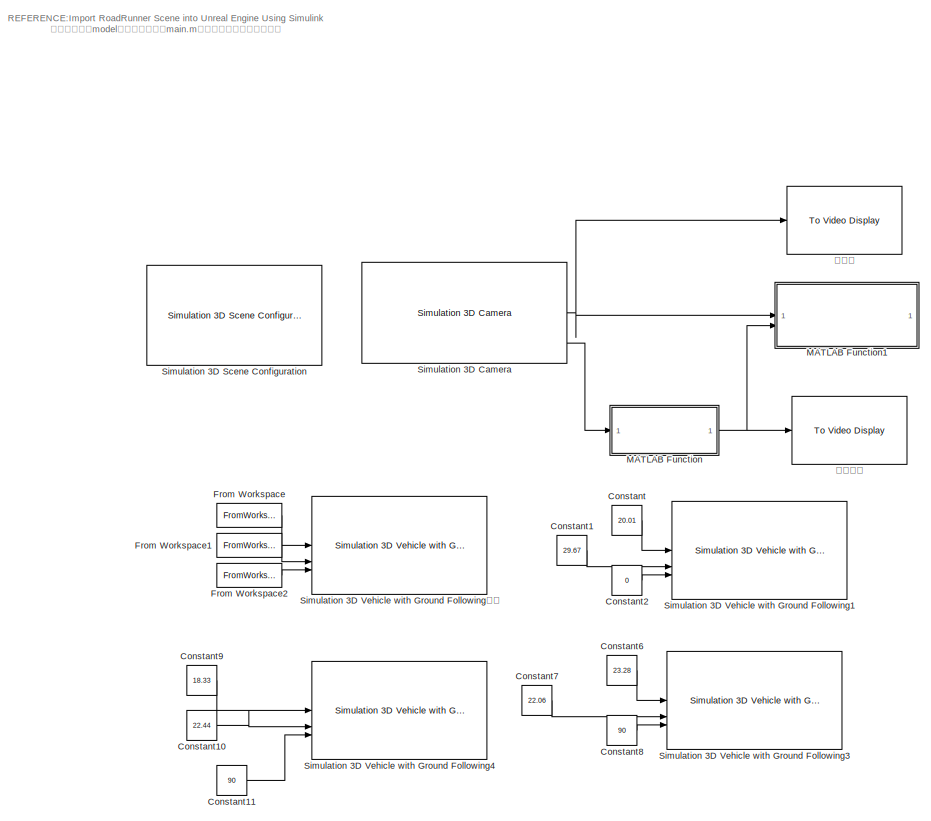
[diagram: root canvas - part 1/2, full width, top band]
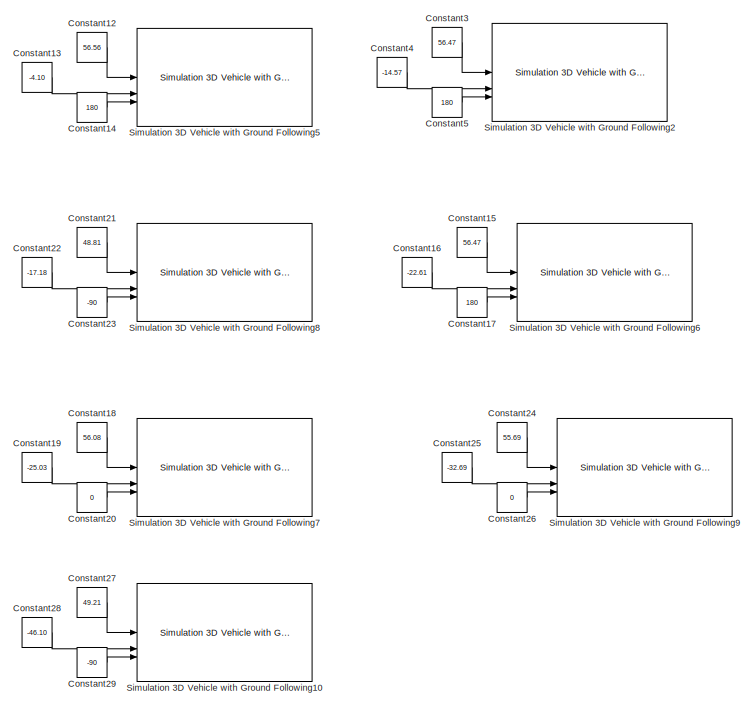
[diagram: root canvas - part 2/2, full width, bottom band]
MODEL slx_b4648ece061b
KIND model
CONFIG AbsTol = auto
CONFIG EnableMultiTasking = off
CONFIG FixedStep = auto
CONFIG MaxStep = auto
CONFIG MinStep = auto
CONFIG RelTol = 1e-3
CONFIG SampleTimeConstraint = Unconstrained
CONFIG SolverName = VariableStepAuto
CONFIG StartTime = 0.0
CONFIG StopTime = 11.5667
BLOCK [Constant] Constant
  Value = 20.01
BLOCK [Constant] Constant1
  Value = 29.67
BLOCK [Constant] Constant10
  Value = 22.44
BLOCK [Constant] Constant11
  Value = 90
BLOCK [Constant] Constant12
  Value = 56.56
BLOCK [Constant] Constant13
  Value = -4.10
BLOCK [Constant] Constant14
  Value = 180
BLOCK [Constant] Constant15
  Value = 56.47
BLOCK [Constant] Constant16
  Value = -22.61
BLOCK [Constant] Constant17
  Value = 180
BLOCK [Constant] Constant18
  Value = 56.08
BLOCK [Constant] Constant19
  Value = -25.03
BLOCK [Constant] Constant2
  Value = 0
BLOCK [Constant] Constant20
  Value = 0
BLOCK [Constant] Constant21
  Value = 48.81
BLOCK [Constant] Constant22
  Value = -17.18
BLOCK [Constant] Constant23
  Value = -90
BLOCK [Constant] Constant24
  Value = 55.69
BLOCK [Constant] Constant25
  Value = -32.69
BLOCK [Constant] Constant26
  Value = 0
BLOCK [Constant] Constant27
  Value = 49.21
BLOCK [Constant] Constant28
  Value = -46.10
BLOCK [Constant] Constant29
  Value = -90
BLOCK [Constant] Constant3
  Value = 56.47
BLOCK [Constant] Constant4
  Value = -14.57
BLOCK [Constant] Constant5
  Value = 180
BLOCK [Constant] Constant6
  Value = 23.28
BLOCK [Constant] Constant7
  Value = 22.06
BLOCK [Constant] Constant8
  Value = 90
BLOCK [Constant] Constant9
  Value = 18.33
BLOCK [FromWorkspace] From Workspace
  VariableName = posX
BLOCK [FromWorkspace] From Workspace1
  VariableName = posY
BLOCK [FromWorkspace] From Workspace2
  VariableName = posYaw
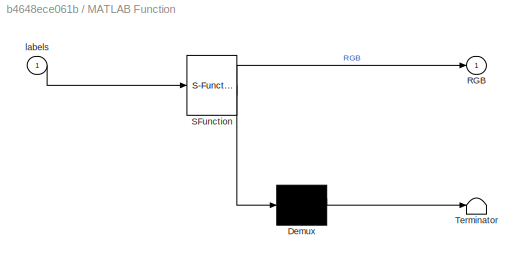
BLOCK [SubSystem] MATLAB Function
  ErrorFcn = Stateflow.Translate.translate
  PermitHierarchicalResolution = ExplicitOnly
  SFBlockType = MATLAB Function
  TreatAsAtomicUnit = on
BLOCK [Demux] MATLAB Function/ Demux 
  Outputs = 1
BLOCK [S-Function] MATLAB Function/ SFunction 
  EnableBusSupport = on
  FunctionName = sf_sfun
  PortCounts = [1 2]
  SFcnIsStateOwnerBlock = off
  SFunctionDeploymentMode = off
  Tag = Stateflow S-Function 2
BLOCK [Terminator] MATLAB Function/ Terminator 
BLOCK [Outport] MATLAB Function/RGB
BLOCK [Inport] MATLAB Function/labels
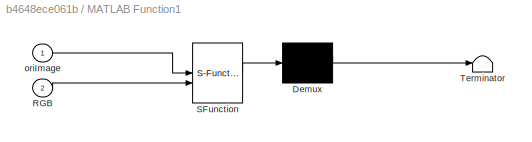
BLOCK [SubSystem] MATLAB Function1
  ErrorFcn = Stateflow.Translate.translate
  PermitHierarchicalResolution = ExplicitOnly
  SFBlockType = MATLAB Function
  TreatAsAtomicUnit = on
BLOCK [Demux] MATLAB Function1/ Demux 
  Outputs = 1
BLOCK [S-Function] MATLAB Function1/ SFunction 
  EnableBusSupport = on
  FunctionName = sf_sfun
  PortCounts = [2 1]
  SFcnIsStateOwnerBlock = off
  SFunctionDeploymentMode = off
  Tag = Stateflow S-Function 1
BLOCK [Terminator] MATLAB Function1/ Terminator 
BLOCK [Inport] MATLAB Function1/RGB
  Port = 2
BLOCK [Inport] MATLAB Function1/oriImage
BLOCK [Reference] Simulation 3D Camera  REF=sim3dcameralib/Simulation 3D Camera
  LibrarySourceBlock = drivingsim3d/Simulation 3D Camera
  Priority = 1
  SourceBlock = sim3dcameralib/Simulation 3D Camera
  SourceType = Simulation 3D Camera
BLOCK [Reference] Simulation 3D Scene Configuration  REF=sim3dlib/Simulation 3D Scene Configuration
  LibrarySourceBlock = drivingsim3d/Simulation 3D Scene Configuration
  Priority = 0
  SourceBlock = sim3dlib/Simulation 3D Scene Configuration
  SourceType = Simulation 3D Scene Configuration
BLOCK [Reference] Simulation 3D Vehicle with Ground Following1  REF=sim3dautolib/Simulation 3D Vehicle with Ground Following
  LibrarySourceBlock = drivingsim3d/Simulation 3D Vehicle with Ground Following
  Priority = -1
  SourceBlock = sim3dautolib/Simulation 3D Vehicle with Ground Following
  SourceType = Simulation 3D Vehicle with Ground Following
BLOCK [Reference] Simulation 3D Vehicle with Ground Following10  REF=sim3dautolib/Simulation 3D Vehicle with Ground Following
  LibrarySourceBlock = drivingsim3d/Simulation 3D Vehicle with Ground Following
  Priority = -1
  SourceBlock = sim3dautolib/Simulation 3D Vehicle with Ground Following
  SourceType = Simulation 3D Vehicle with Ground Following
BLOCK [Reference] Simulation 3D Vehicle with Ground Following2  REF=sim3dautolib/Simulation 3D Vehicle with Ground Following
  LibrarySourceBlock = drivingsim3d/Simulation 3D Vehicle with Ground Following
  Priority = -1
  SourceBlock = sim3dautolib/Simulation 3D Vehicle with Ground Following
  SourceType = Simulation 3D Vehicle with Ground Following
BLOCK [Reference] Simulation 3D Vehicle with Ground Following3  REF=sim3dautolib/Simulation 3D Vehicle with Ground Following
  LibrarySourceBlock = drivingsim3d/Simulation 3D Vehicle with Ground Following
  Priority = -1
  SourceBlock = sim3dautolib/Simulation 3D Vehicle with Ground Following
  SourceType = Simulation 3D Vehicle with Ground Following
BLOCK [Reference] Simulation 3D Vehicle with Ground Following4  REF=sim3dautolib/Simulation 3D Vehicle with Ground Following
  LibrarySourceBlock = drivingsim3d/Simulation 3D Vehicle with Ground Following
  Priority = -1
  SourceBlock = sim3dautolib/Simulation 3D Vehicle with Ground Following
  SourceType = Simulation 3D Vehicle with Ground Following
BLOCK [Reference] Simulation 3D Vehicle with Ground Following5  REF=sim3dautolib/Simulation 3D Vehicle with Ground Following
  LibrarySourceBlock = drivingsim3d/Simulation 3D Vehicle with Ground Following
  Priority = -1
  SourceBlock = sim3dautolib/Simulation 3D Vehicle with Ground Following
  SourceType = Simulation 3D Vehicle with Ground Following
BLOCK [Reference] Simulation 3D Vehicle with Ground Following6  REF=sim3dautolib/Simulation 3D Vehicle with Ground Following
  LibrarySourceBlock = drivingsim3d/Simulation 3D Vehicle with Ground Following
  Priority = -1
  SourceBlock = sim3dautolib/Simulation 3D Vehicle with Ground Following
  SourceType = Simulation 3D Vehicle with Ground Following
BLOCK [Reference] Simulation 3D Vehicle with Ground Following7  REF=sim3dautolib/Simulation 3D Vehicle with Ground Following
  LibrarySourceBlock = drivingsim3d/Simulation 3D Vehicle with Ground Following
  Priority = -1
  SourceBlock = sim3dautolib/Simulation 3D Vehicle with Ground Following
  SourceType = Simulation 3D Vehicle with Ground Following
BLOCK [Reference] Simulation 3D Vehicle with Ground Following8  REF=sim3dautolib/Simulation 3D Vehicle with Ground Following
  LibrarySourceBlock = drivingsim3d/Simulation 3D Vehicle with Ground Following
  Priority = -1
  SourceBlock = sim3dautolib/Simulation 3D Vehicle with Ground Following
  SourceType = Simulation 3D Vehicle with Ground Following
BLOCK [Reference] Simulation 3D Vehicle with Ground Following9  REF=sim3dautolib/Simulation 3D Vehicle with Ground Following
  LibrarySourceBlock = drivingsim3d/Simulation 3D Vehicle with Ground Following
  Priority = -1
  SourceBlock = sim3dautolib/Simulation 3D Vehicle with Ground Following
  SourceType = Simulation 3D Vehicle with Ground Following
BLOCK [Reference] Simulation 3D Vehicle with Ground Following自车  REF=sim3dautolib/Simulation 3D Vehicle with Ground Following
  LibrarySourceBlock = drivingsim3d/Simulation 3D Vehicle with Ground Following
  Priority = -1
  SourceBlock = sim3dautolib/Simulation 3D Vehicle with Ground Following
  SourceType = Simulation 3D Vehicle with Ground Following
BLOCK [Reference] 原图像  REF=visionsinks/To Video Display
  SourceBlock = visionsinks/To Video Display
  SourceType = To Video Display
BLOCK [Reference] 语义图像  REF=visionsinks/To Video Display
  SourceBlock = visionsinks/To Video Display
  SourceType = To Video Display
ANNOTATION (root): REFERENCE:Import RoadRunner Scene into Unreal Engine Using Simulink 注意：运行此model之前，请先运行main.m以获得各个车辆姿态数据！
LINE Constant10:1 -> Simulation 3D Vehicle with Ground Following4:2
LINE Constant11:1 -> Simulation 3D Vehicle with Ground Following4:3
LINE Constant12:1 -> Simulation 3D Vehicle with Ground Following5:1
LINE Constant13:1 -> Simulation 3D Vehicle with Ground Following5:2
LINE Constant14:1 -> Simulation 3D Vehicle with Ground Following5:3
LINE Constant15:1 -> Simulation 3D Vehicle with Ground Following6:1
LINE Constant16:1 -> Simulation 3D Vehicle with Ground Following6:2
LINE Constant17:1 -> Simulation 3D Vehicle with Ground Following6:3
LINE Constant18:1 -> Simulation 3D Vehicle with Ground Following7:1
LINE Constant19:1 -> Simulation 3D Vehicle with Ground Following7:2
LINE Constant1:1 -> Simulation 3D Vehicle with Ground Following1:2
LINE Constant20:1 -> Simulation 3D Vehicle with Ground Following7:3
LINE Constant21:1 -> Simulation 3D Vehicle with Ground Following8:1
LINE Constant22:1 -> Simulation 3D Vehicle with Ground Following8:2
LINE Constant23:1 -> Simulation 3D Vehicle with Ground Following8:3
LINE Constant24:1 -> Simulation 3D Vehicle with Ground Following9:1
LINE Constant25:1 -> Simulation 3D Vehicle with Ground Following9:2
LINE Constant26:1 -> Simulation 3D Vehicle with Ground Following9:3
LINE Constant27:1 -> Simulation 3D Vehicle with Ground Following10:1
LINE Constant28:1 -> Simulation 3D Vehicle with Ground Following10:2
LINE Constant29:1 -> Simulation 3D Vehicle with Ground Following10:3
LINE Constant2:1 -> Simulation 3D Vehicle with Ground Following1:3
LINE Constant3:1 -> Simulation 3D Vehicle with Ground Following2:1
LINE Constant4:1 -> Simulation 3D Vehicle with Ground Following2:2
LINE Constant5:1 -> Simulation 3D Vehicle with Ground Following2:3
LINE Constant6:1 -> Simulation 3D Vehicle with Ground Following3:1
LINE Constant7:1 -> Simulation 3D Vehicle with Ground Following3:2
LINE Constant8:1 -> Simulation 3D Vehicle with Ground Following3:3
LINE Constant9:1 -> Simulation 3D Vehicle with Ground Following4:1
LINE Constant:1 -> Simulation 3D Vehicle with Ground Following1:1
LINE From Workspace1:1 -> Simulation 3D Vehicle with Ground Following自车:2
LINE From Workspace2:1 -> Simulation 3D Vehicle with Ground Following自车:3
LINE From Workspace:1 -> Simulation 3D Vehicle with Ground Following自车:1
NET MATLAB Function:1 -> MATLAB Function1:2, 语义图像:1
NET Simulation 3D Camera:1 -> MATLAB Function1:1, 原图像:1
LINE Simulation 3D Camera:4 -> MATLAB Function:1
note: NET lines group one-source signal fan-out (src -> all destinations, sorted); 1:1 wires keep LINE
CHART MATLAB Function states=1 transitions=1
  STATE_LABEL 'eML_blk_kernel()'
  STATE_LABEL "SCRIPT:\nfunction RGB = sim3dlabel2rgb(labels)\n% Convert semantic segmentation map captured during 3D simulation to RGB\n% color image.\n\n% Declare label2rgb function.\ncoder.extrinsic('label2rgb');\n\n% Preallocate memory for RGB matrix.\nRGB = coder.nullcopy(zeros(size(labels,1),size(labels,2),3,class(labels)));\n\n% Define colormap using 3D simulation label IDs.\ncmap = sim3dColormap;\n\n% Convert labels t...<+54ch>"
CHART MATLAB Function1 states=1 transitions=1
  STATE_LABEL 'eML_blk_kernel()'
  STATE_LABEL 'SCRIPT:\nfunction writeImages(oriImage, RGB)\npersistent inum\nif isempty(inum)\n    inum = 1;\nend\n\n% coder.extrinsic("imwrite");\n% imwrite(oriImage,string(inum)+"_ori.jpg");\n% imwrite(RGB,string(inum)+"_seg.jpg");\ninum = inum+1;\nend\n'
CHART  states=0 transitions=0
CHART  states=0 transitions=0
